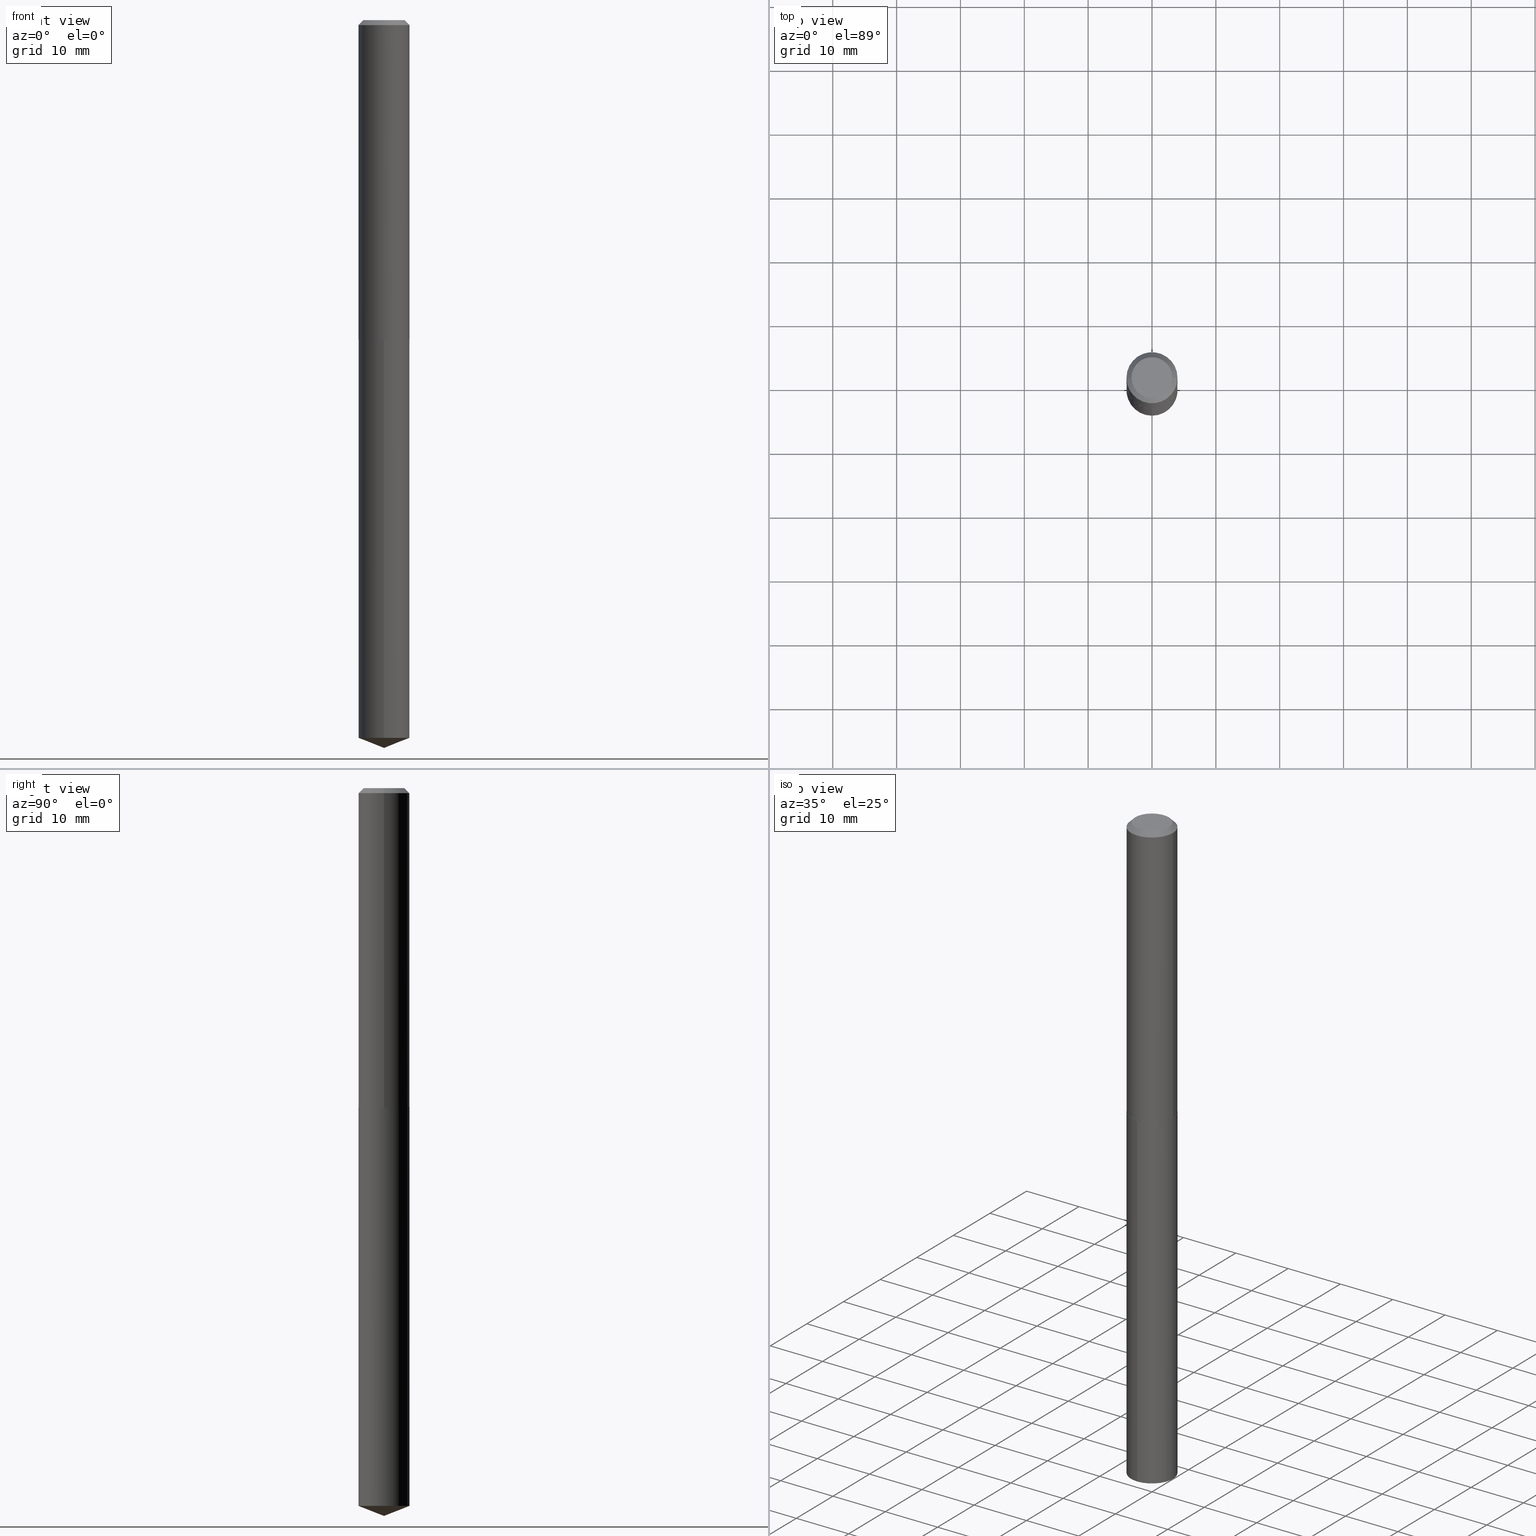
[diagram: canonical four-view strip — front | top / right | iso, engineering-drawing reading convention]
A machine part, canonical four-view strip (front | top / right | iso — engineering-drawing reading convention). The complete STEP part file that produces these views, byte-faithful:
ISO-10303-21;
HEADER;
FILE_DESCRIPTION (( 'STEP AP203' ),
    '1' );
FILE_NAME ('66656.STEP',
    '2024-04-23T12:51:10',
    ( '' ),
    ( '' ),
    'SwSTEP 2.0',
    'SolidWorks 2023',
    '' );
FILE_SCHEMA (( 'CONFIG_CONTROL_DESIGN' ));
ENDSEC;

DATA;
#1 = ORIENTED_EDGE ( 'NONE', *, *, #5, .F. ) ;
#2 = CARTESIAN_POINT ( 'NONE',  ( 4.813905344975440153E-29, -6.872981015512730130E-15, -1.968499999999999472 ) ) ;
#3 = CC_DESIGN_PERSON_AND_ORGANIZATION_ASSIGNMENT ( #276, #9, ( #119 ) ) ;
#4 = DIRECTION ( 'NONE',  ( -2.445468806185136597E-29, 3.491481338843145583E-15, 1.000000000000000000 ) ) ;
#5 = EDGE_CURVE ( 'NONE', #223, #139, #174, .T. ) ;
#6 = APPLICATION_CONTEXT ( 'configuration controlled 3d designs of mechanical parts and assemblies' ) ;
#7 = CC_DESIGN_APPROVAL ( #280, ( #137 ) ) ;
#8 = COORDINATED_UNIVERSAL_TIME_OFFSET ( 5, 0, .BEHIND. ) ;
#9 = PERSON_AND_ORGANIZATION_ROLE ( 'classification_officer' ) ;
#10 = DIRECTION ( 'NONE',  ( -2.446436345111260540E-29, 3.490095768032040163E-15, 1.000000000000000000 ) ) ;
#11 = APPROVAL_STATUS ( 'not_yet_approved' ) ;
#12 = CARTESIAN_POINT ( 'NONE',  ( 0.1575000000000002232, -7.971051896578897684E-15, -1.967999999999999305 ) ) ;
#13 = ORIENTED_EDGE ( 'NONE', *, *, #49, .F. ) ;
#14 = AXIS2_PLACEMENT_3D ( 'NONE', #227, #10, #313 ) ;
#15 = APPROVAL_STATUS ( 'not_yet_approved' ) ;
#16 = ORIENTED_EDGE ( 'NONE', *, *, #154, .F. ) ;
#17 = CONICAL_SURFACE ( 'NONE', #235, 99.94676754584037326, 1.195550537616120845 ) ;
#18 = DIRECTION ( 'NONE',  ( 2.445468806185136597E-29, -3.491481338843145583E-15, -1.000000000000000000 ) ) ;
#19 = ORIENTED_EDGE ( 'NONE', *, *, #33, .T. ) ;
#20 = CARTESIAN_POINT ( 'NONE',  ( 1.082641189133063271E-28, -1.545044664000453265E-14, -4.426159100090647058 ) ) ;
#21 = CARTESIAN_POINT ( 'NONE',  ( -0.1570000000000002782, -5.754779693195259857E-15, -1.968499999999999472 ) ) ;
#22 = ORIENTED_EDGE ( 'NONE', *, *, #106, .T. ) ;
#23 = CARTESIAN_POINT ( 'NONE',  ( -0.1575000000000002232, -5.752130466021147867E-15, -1.967999999999999305 ) ) ;
#24 = CC_DESIGN_APPROVAL ( #76, ( #384 ) ) ;
#25 = CARTESIAN_POINT ( 'NONE',  ( 1.136641479043023400E-28, -1.512059891565456503E-14, -4.488199999999999079 ) ) ;
#26 = CIRCLE ( 'NONE', #329, 0.1575000000000002232 ) ;
#27 = DIRECTION ( 'NONE',  ( -6.982962677686264344E-15, -1.000000000000000000, 3.469013325287953293E-15 ) ) ;
#28 = CARTESIAN_POINT ( 'NONE',  ( 1.098009560412835883E-28, -1.566424782608140295E-14, -4.488199999999999967 ) ) ;
#29 = CARTESIAN_POINT ( 'NONE',  ( -1.099816621735538768E-15, -0.1575000000000068567, -1.968499999999999250 ) ) ;
#30 = CARTESIAN_POINT ( 'NONE',  ( 0.1575000000000000011, -1.189637226487865274E-15, -0.03125000000000022898 ) ) ;
#31 = APPLICATION_CONTEXT ( 'configuration controlled 3d designs of mechanical parts and assemblies' ) ;
#32 = EDGE_CURVE ( 'NONE', #288, #59, #355, .T. ) ;
#33 = EDGE_CURVE ( 'NONE', #103, #139, #337, .T. ) ;
#34 = VECTOR ( 'NONE', #225, 39.37007874015748143 ) ;
#35 = CARTESIAN_POINT ( 'NONE',  ( -8.533820053606113472E-28, 1.217383698758887510E-13, 34.88187874015748235 ) ) ;
#36 = AXIS2_PLACEMENT_3D ( 'NONE', #321, #113, #185 ) ;
#37 = CARTESIAN_POINT ( 'NONE',  ( -0.1262499999999999734, 9.361534339773144209E-16, 4.825108388634215244E-18 ) ) ;
#38 = FACE_OUTER_BOUND ( 'NONE', #247, .T. ) ;
#39 = DATE_AND_TIME ( #98, #352 ) ;
#40 = PERSON_AND_ORGANIZATION ( #138, #196 ) ;
#41 = DIRECTION ( 'NONE',  ( -1.000000000000000000, 6.982962677686265922E-15, 0.000000000000000000 ) ) ;
#42 = CALENDAR_DATE ( 2024, 23, 4 ) ;
#43 = FACE_OUTER_BOUND ( 'NONE', #319, .T. ) ;
#44 = VECTOR ( 'NONE', #148, 39.37007874015748854 ) ;
#45 = PLANE ( 'NONE',  #212 ) ;
#46 = PERSON_AND_ORGANIZATION ( #138, #196 ) ;
#47 = CARTESIAN_POINT ( 'NONE',  ( 4.812682610572347352E-29, -6.871235274843307837E-15, -1.967999999999999305 ) ) ;
#48 = ORIENTED_EDGE ( 'NONE', *, *, #118, .F. ) ;
#49 = EDGE_CURVE ( 'NONE', #105, #279, #186, .T. ) ;
#50 = CARTESIAN_POINT ( 'NONE',  ( -0.1575000000000000011, -2.371067224518919682E-15, -0.03125000000000022898 ) ) ;
#51 = ORIENTED_EDGE ( 'NONE', *, *, #117, .T. ) ;
#52 = ADVANCED_FACE ( 'NONE', ( #87 ), #17, .T. ) ;
#53 = AXIS2_PLACEMENT_3D ( 'NONE', #2, #262, #386 ) ;
#54 = EDGE_CURVE ( 'NONE', #202, #341, #26, .T. ) ;
#55 = AXIS2_PLACEMENT_3D ( 'NONE', #269, #210, #143 ) ;
#56 = ORIENTED_EDGE ( 'NONE', *, *, #231, .T. ) ;
#57 = CONICAL_SURFACE ( 'NONE', #14, 99.94676754584037326, 1.195550537616120845 ) ;
#58 = VERTEX_POINT ( 'NONE', #181 ) ;
#59 = VERTEX_POINT ( 'NONE', #291 ) ;
#60 = CARTESIAN_POINT ( 'NONE',  ( 1.082641189133063271E-28, -1.545044664000453265E-14, -4.426159100090647058 ) ) ;
#61 = DIRECTION ( 'NONE',  ( 1.000000000000000000, -6.982962677686271444E-15, 0.000000000000000000 ) ) ;
#62 = CC_DESIGN_PERSON_AND_ORGANIZATION_ASSIGNMENT ( #40, #304, ( #137 ) ) ;
#63 = CC_DESIGN_SECURITY_CLASSIFICATION ( #119, ( #137 ) ) ;
#64 = ADVANCED_FACE ( 'NONE', ( #140 ), #388, .T. ) ;
#65 = DIRECTION ( 'NONE',  ( 1.000000000000000000, -6.982962677686271444E-15, 0.000000000000000000 ) ) ;
#66 = CIRCLE ( 'NONE', #144, 0.1570000000000002782 ) ;
#67 = DIRECTION ( 'NONE',  ( -2.445468806185136597E-29, 3.491481338843145583E-15, 1.000000000000000000 ) ) ;
#68 = DIMENSIONAL_EXPONENTS ( 1.000000000000000000, 0.000000000000000000, 0.000000000000000000, 0.000000000000000000, 0.000000000000000000, 0.000000000000000000, 0.000000000000000000 ) ;
#69 = ORIENTED_EDGE ( 'NONE', *, *, #117, .F. ) ;
#70 = FACE_OUTER_BOUND ( 'NONE', #108, .T. ) ;
#71 = APPROVAL_STATUS ( 'not_yet_approved' ) ;
#72 = APPROVAL_ROLE ( '' ) ;
#73 = DATE_AND_TIME ( #101, #129 ) ;
#74 = FACE_OUTER_BOUND ( 'NONE', #350, .T. ) ;
#75 = ORIENTED_EDGE ( 'NONE', *, *, #284, .T. ) ;
#76 = APPROVAL ( #11, 'UNSPECIFIED' ) ;
#77 = ORIENTED_EDGE ( 'NONE', *, *, #284, .F. ) ;
#78 = EDGE_CURVE ( 'NONE', #139, #279, #236, .T. ) ;
#79 = FACE_OUTER_BOUND ( 'NONE', #339, .T. ) ;
#80 = EDGE_LOOP ( 'NONE', ( #1, #360, #277 ) ) ;
#81 = AXIS2_PLACEMENT_3D ( 'NONE', #211, #145, #361 ) ;
#82 = CLOSED_SHELL ( 'NONE', ( #228, #52, #239, #294, #200 ) ) ;
#83 = CARTESIAN_POINT ( 'NONE',  ( 0.1262499999999999734, -1.027887549353260543E-15, 4.825108388647246856E-18 ) ) ;
#84 = ORIENTED_EDGE ( 'NONE', *, *, #126, .F. ) ;
#85 = ORIENTED_EDGE ( 'NONE', *, *, #142, .F. ) ;
#86 = APPROVAL_PERSON_ORGANIZATION ( #275, #280, #72 ) ;
#87 = FACE_OUTER_BOUND ( 'NONE', #369, .T. ) ;
#88 = DIRECTION ( 'NONE',  ( -2.446436345111260540E-29, 3.490095768032040163E-15, 1.000000000000000000 ) ) ;
#89 = DIRECTION ( 'NONE',  ( -2.446436345111260820E-29, 3.490095768032040163E-15, 1.000000000000000000 ) ) ;
#90 = ADVANCED_FACE ( 'NONE', ( #209 ), #178, .T. ) ;
#91 = APPROVAL ( #15, 'UNSPECIFIED' ) ;
#92 = AXIS2_PLACEMENT_3D ( 'NONE', #234, #243, #177 ) ;
#93 = LINE ( 'NONE', #300, #44 ) ;
#94 = AXIS2_PLACEMENT_3D ( 'NONE', #347, #201, #110 ) ;
#95 = CARTESIAN_POINT ( 'NONE',  ( -1.099816621735478617E-15, -0.1575000000000154332, -4.426159100090646170 ) ) ;
#96 = CC_DESIGN_DATE_AND_TIME_ASSIGNMENT ( #218, #248, ( #384 ) ) ;
#97 =( NAMED_UNIT ( * ) PLANE_ANGLE_UNIT ( ) SI_UNIT ( $, .RADIAN. ) );
#98 = CALENDAR_DATE ( 2024, 23, 4 ) ;
#99 = ADVANCED_FACE ( 'NONE', ( #271 ), #183, .F. ) ;
#100 = CARTESIAN_POINT ( 'NONE',  ( 0.1575000000000000844, -1.099816621735587677E-15, 7.679978421878603638E-30 ) ) ;
#101 = CALENDAR_DATE ( 2024, 23, 4 ) ;
#102 = CARTESIAN_POINT ( 'NONE',  ( -0.1575000000000002232, -5.752130466021147867E-15, -1.967999999999999305 ) ) ;
#103 = VERTEX_POINT ( 'NONE', #95 ) ;
#104 = COORDINATED_UNIVERSAL_TIME_OFFSET ( 5, 0, .BEHIND. ) ;
#105 = VERTEX_POINT ( 'NONE', #385 ) ;
#106 = EDGE_CURVE ( 'NONE', #341, #202, #158, .T. ) ;
#107 = PLANE ( 'NONE',  #364 ) ;
#108 = EDGE_LOOP ( 'NONE', ( #22, #258, #131, #317 ) ) ;
#109 = FACE_OUTER_BOUND ( 'NONE', #80, .T. ) ;
#110 = DIRECTION ( 'NONE',  ( 1.000000000000000000, -6.982962677686265922E-15, 0.000000000000000000 ) ) ;
#111 = ORIENTED_EDGE ( 'NONE', *, *, #106, .F. ) ;
#112 = ORIENTED_EDGE ( 'NONE', *, *, #126, .T. ) ;
#113 = DIRECTION ( 'NONE',  ( -2.445468806185136597E-29, 3.491481338843145583E-15, 1.000000000000000000 ) ) ;
#114 = CARTESIAN_POINT ( 'NONE',  ( 1.119104808822265875E-15, 0.1574999999999845968, -4.426159100090647947 ) ) ;
#115 = CARTESIAN_POINT ( 'NONE',  ( 4.812682610572347352E-29, -6.871235274843307837E-15, -1.967999999999999305 ) ) ;
#116 = AXIS2_PLACEMENT_3D ( 'NONE', #293, #330, #147 ) ;
#117 = EDGE_CURVE ( 'NONE', #382, #136, #221, .T. ) ;
#118 = EDGE_CURVE ( 'NONE', #103, #105, #233, .T. ) ;
#119 = SECURITY_CLASSIFICATION ( '', '', #194 ) ;
#120 = ORIENTED_EDGE ( 'NONE', *, *, #78, .T. ) ;
#121 = DIRECTION ( 'NONE',  ( -2.445468806185136597E-29, 3.491481338843145583E-15, 1.000000000000000000 ) ) ;
#122 = CIRCLE ( 'NONE', #237, 0.1262499999999999734 ) ;
#123 = DIRECTION ( 'NONE',  ( -2.446436345111260820E-29, 3.490095768032040163E-15, 1.000000000000000000 ) ) ;
#124 = MANIFOLD_SOLID_BREP ( 'Body-Move/Copy2[2]', #240 ) ;
#125 = DATE_AND_TIME ( #363, #153 ) ;
#126 = EDGE_CURVE ( 'NONE', #279, #105, #323, .T. ) ;
#127 = PERSON_AND_ORGANIZATION_ROLE ( 'creator' ) ;
#128 = ORIENTED_EDGE ( 'NONE', *, *, #54, .T. ) ;
#129 = LOCAL_TIME ( 8, 51, 10.00000000000000000, #278 ) ;
#130 = APPROVAL_ROLE ( '' ) ;
#131 = ORIENTED_EDGE ( 'NONE', *, *, #387, .F. ) ;
#132 = VECTOR ( 'NONE', #326, 39.37007874015748854 ) ;
#133 = DIRECTION ( 'NONE',  ( 1.000000000000000000, -6.982962677686271444E-15, 0.000000000000000000 ) ) ;
#134 = ORIENTED_EDGE ( 'NONE', *, *, #255, .T. ) ;
#135 = CARTESIAN_POINT ( 'NONE',  ( 4.813905344975440153E-29, -6.872981015512730130E-15, -1.968499999999999472 ) ) ;
#136 = VERTEX_POINT ( 'NONE', #37 ) ;
#137 = PRODUCT_DEFINITION_FORMATION_WITH_SPECIFIED_SOURCE ( 'ANY', '', #383, .NOT_KNOWN. ) ;
#138 = PERSON ( 'UNSPECIFIED', 'UNSPECIFIED', 'UNSPECIFIED', ('UNSPECIFIED'), ('UNSPECIFIED'), ('UNSPECIFIED') ) ;
#139 = VERTEX_POINT ( 'NONE', #114 ) ;
#140 = FACE_OUTER_BOUND ( 'NONE', #320, .T. ) ;
#141 = PRODUCT_DEFINITION_SHAPE ( 'NONE', 'NONE',  #384 ) ;
#142 = EDGE_CURVE ( 'NONE', #136, #382, #122, .T. ) ;
#143 = DIRECTION ( 'NONE',  ( -6.982962677686264344E-15, -1.000000000000000000, 3.469013325287953293E-15 ) ) ;
#144 = AXIS2_PLACEMENT_3D ( 'NONE', #253, #316, #318 ) ;
#145 = DIRECTION ( 'NONE',  ( -2.445468806185136597E-29, 3.491481338843145583E-15, 1.000000000000000000 ) ) ;
#146 = VECTOR ( 'NONE', #354, 39.37007874015748143 ) ;
#147 = DIRECTION ( 'NONE',  ( 1.000000000000000000, -6.982962677686271444E-15, 0.000000000000000000 ) ) ;
#148 = DIRECTION ( 'NONE',  ( -6.497071151882123780E-15, -0.9304175679820250178, 0.3665012267242957478 ) ) ;
#149 = CIRCLE ( 'NONE', #206, 0.1575000000000000011 ) ;
#150 = EDGE_CURVE ( 'NONE', #202, #288, #241, .T. ) ;
#151 = CYLINDRICAL_SURFACE ( 'NONE', #270, 0.1575000000000000844 ) ;
#152 = APPROVAL_DATE_TIME ( #39, #76 ) ;
#153 = LOCAL_TIME ( 8, 51, 10.00000000000000000, #8 ) ;
#154 = EDGE_CURVE ( 'NONE', #382, #59, #205, .T. ) ;
#155 = PERSON_AND_ORGANIZATION_ROLE ( 'design_supplier' ) ;
#156 = CARTESIAN_POINT ( 'NONE',  ( 1.119104808822266269E-15, 0.1574999999999931177, -1.968500000000000139 ) ) ;
#157 = CC_DESIGN_PERSON_AND_ORGANIZATION_ASSIGNMENT ( #334, #155, ( #137 ) ) ;
#158 = CIRCLE ( 'NONE', #266, 0.1575000000000002232 ) ;
#159 = DIRECTION ( 'NONE',  ( 0.000000000000000000, 0.000000000000000000, 1.000000000000000000 ) ) ;
#160 = DIRECTION ( 'NONE',  ( -6.982962677686264344E-15, -1.000000000000000000, 3.469013325287953293E-15 ) ) ;
#161 = ORIENTED_EDGE ( 'NONE', *, *, #381, .T. ) ;
#162 = PERSON_AND_ORGANIZATION ( #138, #196 ) ;
#163 = DIRECTION ( 'NONE',  ( -1.000000000000000000, 6.982962677686265922E-15, 0.000000000000000000 ) ) ;
#164 = ORIENTED_EDGE ( 'NONE', *, *, #302, .F. ) ;
#165 = CC_DESIGN_APPROVAL ( #91, ( #119 ) ) ;
#166 = LINE ( 'NONE', #251, #389 ) ;
#167 =( CONVERSION_BASED_UNIT ( 'INCH', #311 ) LENGTH_UNIT ( ) NAMED_UNIT ( #68 ) );
#168 = EDGE_LOOP ( 'NONE', ( #69, #198, #348, #328 ) ) ;
#169 = DIRECTION ( 'NONE',  ( -2.446436345111260540E-29, 3.490095768032040163E-15, 1.000000000000000000 ) ) ;
#170 = SHAPE_DEFINITION_REPRESENTATION ( #141, #365 ) ;
#171 = LINE ( 'NONE', #100, #357 ) ;
#172 = ORIENTED_EDGE ( 'NONE', *, *, #5, .T. ) ;
#173 = DIRECTION ( 'NONE',  ( -1.000000000000000000, 6.982962677686265922E-15, -4.876176775795935793E-29 ) ) ;
#174 = LINE ( 'NONE', #25, #132 ) ;
#175 = EDGE_CURVE ( 'NONE', #223, #103, #93, .T. ) ;
#176 = LOCAL_TIME ( 8, 51, 10.00000000000000000, #370 ) ;
#177 = DIRECTION ( 'NONE',  ( 1.000000000000000000, -6.982962677686265922E-15, 0.000000000000000000 ) ) ;
#178 = CONICAL_SURFACE ( 'NONE', #116, 0.1575000000000002232, 0.7853981633972434429 ) ;
#179 = CARTESIAN_POINT ( 'NONE',  ( 4.813905344975440153E-29, -6.872981015512730130E-15, -1.968499999999999472 ) ) ;
#180 = ADVANCED_FACE ( 'NONE', ( #70 ), #151, .T. ) ;
#181 = CARTESIAN_POINT ( 'NONE',  ( 0.1570000000000002782, -7.969306155909475391E-15, -1.968499999999999472 ) ) ;
#182 = VECTOR ( 'NONE', #123, 39.37007874015748143 ) ;
#183 = PLANE ( 'NONE',  #53 ) ;
#184 = ADVANCED_FACE ( 'NONE', ( #38 ), #45, .F. ) ;
#185 = DIRECTION ( 'NONE',  ( 1.000000000000000000, -6.982962677686267499E-15, 4.876009584780190244E-29 ) ) ;
#186 = CIRCLE ( 'NONE', #268, 0.1575000000000000011 ) ;
#187 = CARTESIAN_POINT ( 'NONE',  ( 0.000000000000000000, 0.000000000000000000, 0.000000000000000000 ) ) ;
#188 = APPLICATION_PROTOCOL_DEFINITION ( 'international standard', 'config_control_design', 1994, #31 ) ;
#189 = EDGE_CURVE ( 'NONE', #136, #288, #166, .T. ) ;
#190 = APPROVAL_DATE_TIME ( #125, #280 ) ;
#191 = CIRCLE ( 'NONE', #94, 0.1575000000000000011 ) ;
#192 =( NAMED_UNIT ( * ) SI_UNIT ( $, .STERADIAN. ) SOLID_ANGLE_UNIT ( ) );
#193 = ORIENTED_EDGE ( 'NONE', *, *, #54, .F. ) ;
#194 = SECURITY_CLASSIFICATION_LEVEL ( 'unclassified' ) ;
#195 = EDGE_LOOP ( 'NONE', ( #344, #164 ) ) ;
#196 = ORGANIZATION ( 'UNSPECIFIED', 'UNSPECIFIED', '' ) ;
#197 = CARTESIAN_POINT ( 'NONE',  ( 7.198151617701910805E-29, -3.458604650098061903E-15, -1.968499999999999472 ) ) ;
#198 = ORIENTED_EDGE ( 'NONE', *, *, #154, .T. ) ;
#199 = CARTESIAN_POINT ( 'NONE',  ( -5.899826025441371921E-47, 8.423387948417036461E-33, 2.412554194320285406E-18 ) ) ;
#200 = ADVANCED_FACE ( 'NONE', ( #372 ), #107, .F. ) ;
#201 = DIRECTION ( 'NONE',  ( -2.445468806185136597E-29, 3.491481338843145583E-15, 1.000000000000000000 ) ) ;
#202 = VERTEX_POINT ( 'NONE', #23 ) ;
#203 = ORIENTED_EDGE ( 'NONE', *, *, #150, .F. ) ;
#204 = DIRECTION ( 'NONE',  ( -6.982962677686266711E-15, -1.000000000000000000, 3.498627837349990023E-15 ) ) ;
#205 = LINE ( 'NONE', #30, #208 ) ;
#206 = AXIS2_PLACEMENT_3D ( 'NONE', #20, #256, #377 ) ;
#207 = AXIS2_PLACEMENT_3D ( 'NONE', #47, #281, #133 ) ;
#208 = VECTOR ( 'NONE', #265, 39.37007874015748143 ) ;
#209 = FACE_OUTER_BOUND ( 'NONE', #314, .T. ) ;
#210 = DIRECTION ( 'NONE',  ( -2.446436345111260540E-29, 3.490095768032040163E-15, 1.000000000000000000 ) ) ;
#211 = CARTESIAN_POINT ( 'NONE',  ( 0.000000000000000000, 0.000000000000000000, 0.000000000000000000 ) ) ;
#212 = AXIS2_PLACEMENT_3D ( 'NONE', #199, #263, #173 ) ;
#213 = MECHANICAL_CONTEXT ( 'NONE', #6, 'mechanical' ) ;
#214 = DIRECTION ( 'NONE',  ( 0.7071067811864026886, -2.468850131080739687E-15, 0.7071067811866923458 ) ) ;
#215 = APPLICATION_PROTOCOL_DEFINITION ( 'international standard', 'config_control_design', 1994, #6 ) ;
#216 = DIRECTION ( 'NONE',  ( -2.445468806185136597E-29, 3.491481338843145583E-15, 1.000000000000000000 ) ) ;
#217 =( GEOMETRIC_REPRESENTATION_CONTEXT ( 3 ) GLOBAL_UNCERTAINTY_ASSIGNED_CONTEXT ( ( #297 ) ) GLOBAL_UNIT_ASSIGNED_CONTEXT ( ( #167, #97, #192 ) ) REPRESENTATION_CONTEXT ( 'NONE', 'WORKASPACE' ) );
#218 = DATE_AND_TIME ( #42, #259 ) ;
#219 = DIRECTION ( 'NONE',  ( -2.445468806185136877E-29, 3.491481338843145188E-15, 1.000000000000000000 ) ) ;
#220 = ORIENTED_EDGE ( 'NONE', *, *, #32, .F. ) ;
#221 = CIRCLE ( 'NONE', #36, 0.1262499999999999734 ) ;
#222 = CYLINDRICAL_SURFACE ( 'NONE', #289, 0.1575000000000000011 ) ;
#223 = VERTEX_POINT ( 'NONE', #28 ) ;
#224 = CC_DESIGN_PERSON_AND_ORGANIZATION_ASSIGNMENT ( #246, #127, ( #384 ) ) ;
#225 = DIRECTION ( 'NONE',  ( -0.7071067811864026886, 7.493145998869830357E-15, 0.7071067811866923458 ) ) ;
#226 = ORIENTED_EDGE ( 'NONE', *, *, #325, .F. ) ;
#227 = CARTESIAN_POINT ( 'NONE',  ( -8.533820053606113472E-28, 1.217383698758887510E-13, 34.88187874015748235 ) ) ;
#228 = ADVANCED_FACE ( 'NONE', ( #380 ), #349, .T. ) ;
#229 = ORIENTED_EDGE ( 'NONE', *, *, #175, .F. ) ;
#230 = APPROVAL_DATE_TIME ( #260, #91 ) ;
#231 = EDGE_CURVE ( 'NONE', #139, #103, #149, .T. ) ;
#232 = ORIENTED_EDGE ( 'NONE', *, *, #325, .T. ) ;
#233 = LINE ( 'NONE', #29, #182 ) ;
#234 = CARTESIAN_POINT ( 'NONE',  ( 7.642090019328607917E-31, -1.091087918388491006E-16, -0.03125000000000022898 ) ) ;
#235 = AXIS2_PLACEMENT_3D ( 'NONE', #35, #264, #204 ) ;
#236 = LINE ( 'NONE', #353, #296 ) ;
#237 = AXIS2_PLACEMENT_3D ( 'NONE', #295, #121, #324 ) ;
#238 = AXIS2_PLACEMENT_3D ( 'NONE', #367, #159, #283 ) ;
#239 = ADVANCED_FACE ( 'NONE', ( #109 ), #57, .T. ) ;
#240 = CLOSED_SHELL ( 'NONE', ( #242, #180, #90, #99, #376, #64, #362, #184 ) ) ;
#241 = LINE ( 'NONE', #359, #146 ) ;
#242 = ADVANCED_FACE ( 'NONE', ( #332 ), #267, .T. ) ;
#243 = DIRECTION ( 'NONE',  ( -2.445468806185136597E-29, 3.491481338843145583E-15, 1.000000000000000000 ) ) ;
#244 = AXIS2_PLACEMENT_3D ( 'NONE', #307, #338, #41 ) ;
#245 =( LENGTH_UNIT ( ) NAMED_UNIT ( * ) SI_UNIT ( $, .METRE. ) );
#246 = PERSON_AND_ORGANIZATION ( #138, #196 ) ;
#247 = EDGE_LOOP ( 'NONE', ( #254, #51 ) ) ;
#248 = DATE_TIME_ROLE ( 'creation_date' ) ;
#249 = DIRECTION ( 'NONE',  ( 1.000000000000000000, -6.982962677686264344E-15, 0.000000000000000000 ) ) ;
#250 = ORIENTED_EDGE ( 'NONE', *, *, #33, .F. ) ;
#251 = CARTESIAN_POINT ( 'NONE',  ( -0.1575000000000000011, 9.907078298967379852E-16, -0.03125000000000022898 ) ) ;
#252 = MANIFOLD_SOLID_BREP ( 'Body-Move/Copy2[1]', #82 ) ;
#253 = CARTESIAN_POINT ( 'NONE',  ( 4.813905344975440153E-29, -6.872981015512730130E-15, -1.968499999999999472 ) ) ;
#254 = ORIENTED_EDGE ( 'NONE', *, *, #142, .T. ) ;
#255 = EDGE_CURVE ( 'NONE', #341, #59, #171, .T. ) ;
#256 = DIRECTION ( 'NONE',  ( -2.446436345111260540E-29, 3.490095768032040163E-15, 1.000000000000000000 ) ) ;
#257 = DIRECTION ( 'NONE',  ( -2.446436345111260540E-29, 3.490095768032040163E-15, 1.000000000000000000 ) ) ;
#258 = ORIENTED_EDGE ( 'NONE', *, *, #150, .T. ) ;
#259 = LOCAL_TIME ( 8, 51, 10.00000000000000000, #104 ) ;
#260 = DATE_AND_TIME ( #346, #176 ) ;
#261 = ORIENTED_EDGE ( 'NONE', *, *, #49, .T. ) ;
#262 = DIRECTION ( 'NONE',  ( -2.438088387897960049E-29, 3.491481338843145188E-15, 1.000000000000000000 ) ) ;
#263 = DIRECTION ( 'NONE',  ( 2.438088387897960049E-29, -3.491481338843145188E-15, -1.000000000000000000 ) ) ;
#264 = DIRECTION ( 'NONE',  ( -2.446436345111260540E-29, 3.490095768032040163E-15, 1.000000000000000000 ) ) ;
#265 = DIRECTION ( 'NONE',  ( 0.7071067811865450192, -7.319954787623246579E-15, -0.7071067811865500152 ) ) ;
#266 = AXIS2_PLACEMENT_3D ( 'NONE', #299, #4, #61 ) ;
#267 = CONICAL_SURFACE ( 'NONE', #244, 0.1575000000000000011, 0.7853981633974447263 ) ;
#268 = AXIS2_PLACEMENT_3D ( 'NONE', #179, #88, #27 ) ;
#269 = CARTESIAN_POINT ( 'NONE',  ( 4.813905344975440153E-29, -6.872981015512730130E-15, -1.968499999999999472 ) ) ;
#270 = AXIS2_PLACEMENT_3D ( 'NONE', #187, #273, #301 ) ;
#271 = FACE_OUTER_BOUND ( 'NONE', #195, .T. ) ;
#272 = DESIGN_CONTEXT ( 'detailed design', #31, 'design' ) ;
#273 = DIRECTION ( 'NONE',  ( -2.445468806185136597E-29, 3.491481338843145583E-15, 1.000000000000000000 ) ) ;
#274 = CONICAL_SURFACE ( 'NONE', #207, 0.1575000000000002232, 0.7853981633972434429 ) ;
#275 = PERSON_AND_ORGANIZATION ( #138, #196 ) ;
#276 = PERSON_AND_ORGANIZATION ( #138, #196 ) ;
#277 = ORIENTED_EDGE ( 'NONE', *, *, #231, .F. ) ;
#278 = COORDINATED_UNIVERSAL_TIME_OFFSET ( 5, 0, .BEHIND. ) ;
#279 = VERTEX_POINT ( 'NONE', #156 ) ;
#280 = APPROVAL ( #71, 'UNSPECIFIED' ) ;
#281 = DIRECTION ( 'NONE',  ( -2.445468806185136597E-29, 3.491481338843145583E-15, 1.000000000000000000 ) ) ;
#282 = ORIENTED_EDGE ( 'NONE', *, *, #32, .T. ) ;
#283 = DIRECTION ( 'NONE',  ( 1.000000000000000000, 0.000000000000000000, 0.000000000000000000 ) ) ;
#284 = EDGE_CURVE ( 'NONE', #358, #202, #366, .T. ) ;
#285 = ORIENTED_EDGE ( 'NONE', *, *, #302, .T. ) ;
#286 = DIRECTION ( 'NONE',  ( -6.982962677686264344E-15, -1.000000000000000000, 3.469013325287953293E-15 ) ) ;
#287 = ORIENTED_EDGE ( 'NONE', *, *, #78, .F. ) ;
#288 = VERTEX_POINT ( 'NONE', #50 ) ;
#289 = AXIS2_PLACEMENT_3D ( 'NONE', #374, #257, #160 ) ;
#290 = DIRECTION ( 'NONE',  ( 6.982962677686265922E-15, 1.000000000000000000, -3.490095768032040163E-15 ) ) ;
#291 = CARTESIAN_POINT ( 'NONE',  ( 0.1575000000000000011, -1.208925413574435989E-15, -0.03125000000000022898 ) ) ;
#292 = DIRECTION ( 'NONE',  ( -0.7071067811865450192, 2.468850131082230634E-15, -0.7071067811865500152 ) ) ;
#293 = CARTESIAN_POINT ( 'NONE',  ( 4.812682610572347352E-29, -6.871235274843307837E-15, -1.967999999999999305 ) ) ;
#294 = ADVANCED_FACE ( 'NONE', ( #43 ), #222, .T. ) ;
#295 = CARTESIAN_POINT ( 'NONE',  ( -1.179965205088274384E-46, 1.684677589683407292E-32, 4.825108388640570813E-18 ) ) ;
#296 = VECTOR ( 'NONE', #89, 39.37007874015748143 ) ;
#297 = UNCERTAINTY_MEASURE_WITH_UNIT (LENGTH_MEASURE( 1.000000000000000082E-05 ), #167, 'distance_accuracy_value', 'NONE');
#298 = CIRCLE ( 'NONE', #312, 0.1570000000000002782 ) ;
#299 = CARTESIAN_POINT ( 'NONE',  ( 4.812682610572347352E-29, -6.871235274843307837E-15, -1.967999999999999305 ) ) ;
#300 = CARTESIAN_POINT ( 'NONE',  ( 1.059665839824866860E-28, -1.621335172879155537E-14, -4.488199999999999079 ) ) ;
#301 = DIRECTION ( 'NONE',  ( 1.000000000000000000, -6.982962677686267499E-15, 4.876176775795936353E-29 ) ) ;
#302 = EDGE_CURVE ( 'NONE', #358, #58, #298, .T. ) ;
#303 = VECTOR ( 'NONE', #214, 39.37007874015748143 ) ;
#304 = PERSON_AND_ORGANIZATION_ROLE ( 'creator' ) ;
#305 = PERSON_AND_ORGANIZATION ( #138, #196 ) ;
#306 = AXIS2_PLACEMENT_3D ( 'NONE', #60, #327, #356 ) ;
#307 = CARTESIAN_POINT ( 'NONE',  ( 7.642090019328607917E-31, -1.091087918388491006E-16, -0.03125000000000022898 ) ) ;
#308 = DATE_TIME_ROLE ( 'classification_date' ) ;
#309 = CARTESIAN_POINT ( 'NONE',  ( 7.642090019328607917E-31, -1.091087918388491006E-16, -0.03125000000000022898 ) ) ;
#310 = ORIENTED_EDGE ( 'NONE', *, *, #189, .T. ) ;
#311 = LENGTH_MEASURE_WITH_UNIT ( LENGTH_MEASURE( 0.02539999999999999897 ), #245 );
#312 = AXIS2_PLACEMENT_3D ( 'NONE', #135, #216, #249 ) ;
#313 = DIRECTION ( 'NONE',  ( -6.982962677686266711E-15, -1.000000000000000000, 3.498627837349990023E-15 ) ) ;
#314 = EDGE_LOOP ( 'NONE', ( #161, #75, #111, #226 ) ) ;
#315 = DIRECTION ( 'NONE',  ( 2.446436345111260260E-29, -3.490095768032040163E-15, -1.000000000000000000 ) ) ;
#316 = DIRECTION ( 'NONE',  ( -2.445468806185136597E-29, 3.491481338843145583E-15, 1.000000000000000000 ) ) ;
#317 = ORIENTED_EDGE ( 'NONE', *, *, #255, .F. ) ;
#318 = DIRECTION ( 'NONE',  ( 1.000000000000000000, -6.982962677686264344E-15, 0.000000000000000000 ) ) ;
#319 = EDGE_LOOP ( 'NONE', ( #287, #56, #379, #84 ) ) ;
#320 = EDGE_LOOP ( 'NONE', ( #203, #128, #134, #220 ) ) ;
#321 = CARTESIAN_POINT ( 'NONE',  ( -1.179965205088274384E-46, 1.684677589683407292E-32, 4.825108388640570813E-18 ) ) ;
#322 = PRODUCT_RELATED_PRODUCT_CATEGORY ( 'detail', '', ( #383 ) ) ;
#323 = CIRCLE ( 'NONE', #55, 0.1575000000000000011 ) ;
#324 = DIRECTION ( 'NONE',  ( 1.000000000000000000, -6.982962677686267499E-15, 4.876009584780190244E-29 ) ) ;
#325 = EDGE_CURVE ( 'NONE', #58, #341, #343, .T. ) ;
#326 = DIRECTION ( 'NONE',  ( 6.611014441532069744E-15, 0.9304175679820275713, 0.3665012267242892530 ) ) ;
#327 = DIRECTION ( 'NONE',  ( -2.446436345111260540E-29, 3.490095768032040163E-15, 1.000000000000000000 ) ) ;
#328 = ORIENTED_EDGE ( 'NONE', *, *, #189, .F. ) ;
#329 = AXIS2_PLACEMENT_3D ( 'NONE', #115, #67, #65 ) ;
#330 = DIRECTION ( 'NONE',  ( -2.445468806185136597E-29, 3.491481338843145583E-15, 1.000000000000000000 ) ) ;
#331 = PERSON_AND_ORGANIZATION_ROLE ( 'design_owner' ) ;
#332 = FACE_OUTER_BOUND ( 'NONE', #168, .T. ) ;
#333 = APPROVAL_PERSON_ORGANIZATION ( #46, #76, #336 ) ;
#334 = PERSON_AND_ORGANIZATION ( #138, #196 ) ;
#335 = CC_DESIGN_DATE_AND_TIME_ASSIGNMENT ( #73, #308, ( #119 ) ) ;
#336 = APPROVAL_ROLE ( '' ) ;
#337 = CIRCLE ( 'NONE', #306, 0.1575000000000000011 ) ;
#338 = DIRECTION ( 'NONE',  ( 2.445468806185136597E-29, -3.491481338843145583E-15, -1.000000000000000000 ) ) ;
#339 = EDGE_LOOP ( 'NONE', ( #77, #285, #232, #193 ) ) ;
#340 = COORDINATED_UNIVERSAL_TIME_OFFSET ( 5, 0, .BEHIND. ) ;
#341 = VERTEX_POINT ( 'NONE', #368 ) ;
#342 = APPROVAL_PERSON_ORGANIZATION ( #162, #91, #130 ) ;
#343 = LINE ( 'NONE', #12, #303 ) ;
#344 = ORIENTED_EDGE ( 'NONE', *, *, #381, .F. ) ;
#345 = CC_DESIGN_PERSON_AND_ORGANIZATION_ASSIGNMENT ( #305, #331, ( #383 ) ) ;
#346 = CALENDAR_DATE ( 2024, 23, 4 ) ;
#347 = CARTESIAN_POINT ( 'NONE',  ( 7.642090019328607917E-31, -1.091087918388491006E-16, -0.03125000000000022898 ) ) ;
#348 = ORIENTED_EDGE ( 'NONE', *, *, #387, .T. ) ;
#349 = CYLINDRICAL_SURFACE ( 'NONE', #373, 0.1575000000000000011 ) ;
#350 = EDGE_LOOP ( 'NONE', ( #16, #85, #310, #282 ) ) ;
#351 = CARTESIAN_POINT ( 'NONE',  ( 4.813905344975440714E-29, -6.872981015512730918E-15, -1.968499999999999694 ) ) ;
#352 = LOCAL_TIME ( 8, 51, 10.00000000000000000, #340 ) ;
#353 = CARTESIAN_POINT ( 'NONE',  ( 1.119104808822205527E-15, 0.1574999999999931177, -1.968500000000000361 ) ) ;
#354 = DIRECTION ( 'NONE',  ( -2.445468806185136877E-29, 3.491481338843145188E-15, 1.000000000000000000 ) ) ;
#355 = CIRCLE ( 'NONE', #92, 0.1575000000000000011 ) ;
#356 = DIRECTION ( 'NONE',  ( -6.982962677686264344E-15, -1.000000000000000000, 3.469013325287953293E-15 ) ) ;
#357 = VECTOR ( 'NONE', #219, 39.37007874015748143 ) ;
#358 = VERTEX_POINT ( 'NONE', #21 ) ;
#359 = CARTESIAN_POINT ( 'NONE',  ( -0.1575000000000000844, 1.119104808822158392E-15, -7.747322767151481189E-30 ) ) ;
#360 = ORIENTED_EDGE ( 'NONE', *, *, #175, .T. ) ;
#361 = DIRECTION ( 'NONE',  ( 1.000000000000000000, -6.982962677686267499E-15, 4.876176775795936353E-29 ) ) ;
#362 = ADVANCED_FACE ( 'NONE', ( #74 ), #390, .T. ) ;
#363 = CALENDAR_DATE ( 2024, 23, 4 ) ;
#364 = AXIS2_PLACEMENT_3D ( 'NONE', #197, #315, #290 ) ;
#365 = ADVANCED_BREP_SHAPE_REPRESENTATION ( '66656', ( #252, #124, #238 ), #217 ) ;
#366 = LINE ( 'NONE', #102, #34 ) ;
#367 = CARTESIAN_POINT ( 'NONE',  ( 0.000000000000000000, 0.000000000000000000, 0.000000000000000000 ) ) ;
#368 = CARTESIAN_POINT ( 'NONE',  ( 0.1575000000000002232, -7.971051896578897684E-15, -1.967999999999999305 ) ) ;
#369 = EDGE_LOOP ( 'NONE', ( #229, #172, #250 ) ) ;
#370 = COORDINATED_UNIVERSAL_TIME_OFFSET ( 5, 0, .BEHIND. ) ;
#371 = EDGE_LOOP ( 'NONE', ( #19, #120, #13, #48 ) ) ;
#372 = FACE_OUTER_BOUND ( 'NONE', #375, .T. ) ;
#373 = AXIS2_PLACEMENT_3D ( 'NONE', #351, #169, #286 ) ;
#374 = CARTESIAN_POINT ( 'NONE',  ( 4.813905344975440714E-29, -6.872981015512730918E-15, -1.968499999999999694 ) ) ;
#375 = EDGE_LOOP ( 'NONE', ( #261, #112 ) ) ;
#376 = ADVANCED_FACE ( 'NONE', ( #79 ), #274, .T. ) ;
#377 = DIRECTION ( 'NONE',  ( -6.982962677686264344E-15, -1.000000000000000000, 3.469013325287953293E-15 ) ) ;
#378 = AXIS2_PLACEMENT_3D ( 'NONE', #309, #18, #163 ) ;
#379 = ORIENTED_EDGE ( 'NONE', *, *, #118, .T. ) ;
#380 = FACE_OUTER_BOUND ( 'NONE', #371, .T. ) ;
#381 = EDGE_CURVE ( 'NONE', #58, #358, #66, .T. ) ;
#382 = VERTEX_POINT ( 'NONE', #83 ) ;
#383 = PRODUCT ( '66656', '66656', '', ( #213 ) ) ;
#384 = PRODUCT_DEFINITION ( 'UNKNOWN', '', #137, #272 ) ;
#385 = CARTESIAN_POINT ( 'NONE',  ( -1.099816621735538768E-15, -0.1575000000000068567, -1.968499999999999028 ) ) ;
#386 = DIRECTION ( 'NONE',  ( 1.000000000000000000, -6.982962677686265922E-15, 4.876176775795935793E-29 ) ) ;
#387 = EDGE_CURVE ( 'NONE', #59, #288, #191, .T. ) ;
#388 = CYLINDRICAL_SURFACE ( 'NONE', #81, 0.1575000000000000844 ) ;
#389 = VECTOR ( 'NONE', #292, 39.37007874015748143 ) ;
#390 = CONICAL_SURFACE ( 'NONE', #378, 0.1575000000000000011, 0.7853981633974447263 ) ;
ENDSEC;
END-ISO-10303-21;
